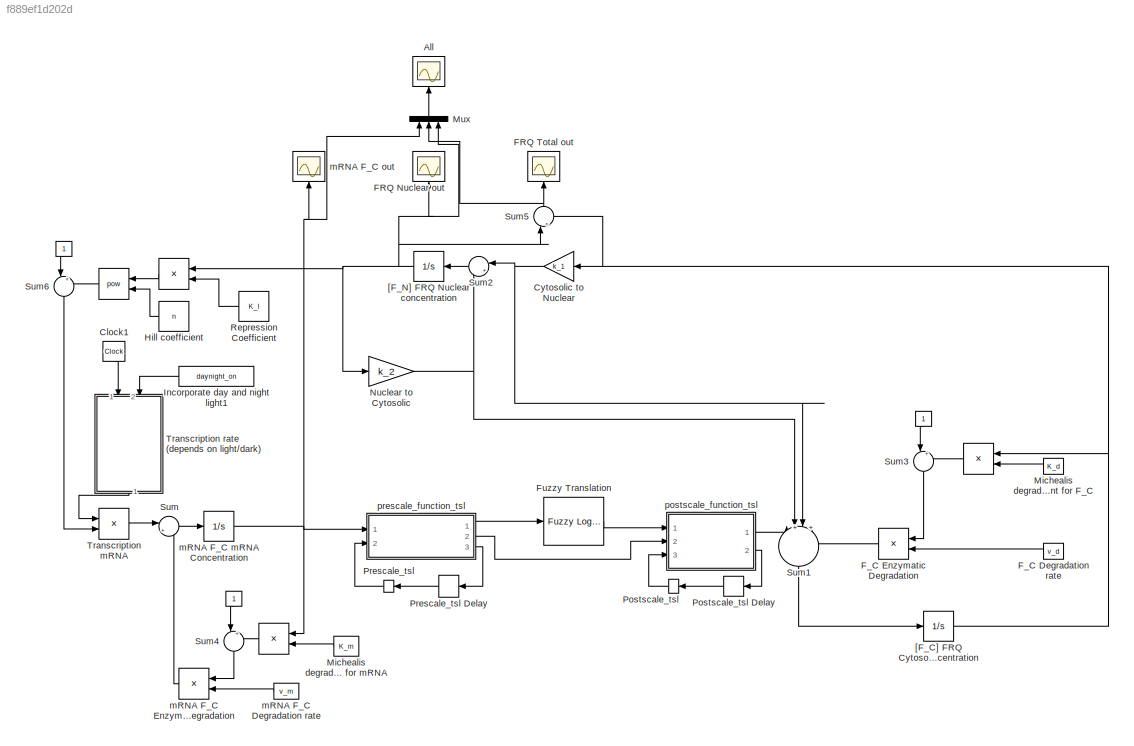
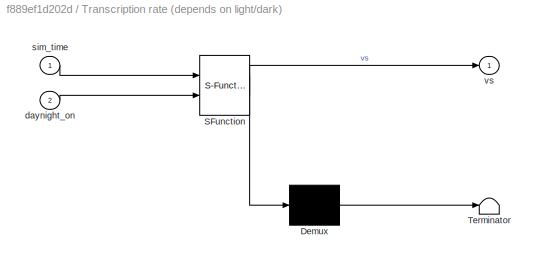
MODEL slx_f889ef1d202d
KIND model
CONFIG AbsTol = auto
CONFIG FixedStep = 0.01
CONFIG MaxStep = auto
CONFIG MinStep = auto
CONFIG RelTol = 1e-3
CONFIG SampleTimeConstraint = Unconstrained
CONFIG Solver = ode4
CONFIG SolverMode = Auto
CONFIG SolverName = ode4
CONFIG StartTime = 0.0
CONFIG StopTime = 72
BLOCK [Product]  
  InputSameDT = off
  Inputs = /*
  OutDataTypeStr = Inherit: Inherit via internal rule
  Ports = [2, 1]
  RndMeth = Floor
  SaturateOnIntegerOverflow = off
BLOCK [Constant]           
BLOCK [Scope] All
  Floating = off
  LimitDataPoints = off
  NumInputPorts = 1
  Ports = [1]
  SaveName = All
  SaveToWorkspace = on
  TimeRange = 71.999776
  YMax = 9
  YMin = 0
BLOCK [Clock] Clock1
BLOCK [Gain] Cytosolic to Nuclear
  Gain = k_1
  OutDataTypeStr = Inherit: Inherit via internal rule
  ParamDataTypeStr = Inherit: Inherit via internal rule
  SaturateOnIntegerOverflow = off
BLOCK [Scope] FRQ Nuclear out
  Floating = off
  LimitDataPoints = off
  NumInputPorts = 1
  Ports = [1]
  SaveName = F_N
  SaveToWorkspace = on
  TimeRange = 71.999776
  YMax = 4.5
  YMin = 0
BLOCK [Scope] FRQ Total out
  Floating = off
  LimitDataPoints = off
  NumInputPorts = 1
  Ports = [1]
  SaveName = F_FL_tsl
  SaveToWorkspace = on
  TimeRange = 71.999776
  YMax = 10
  YMin = 0.5
BLOCK [Constant] F_C Degradation rate
  Value = v_d
BLOCK [Product] F_C Enzymatic Degradation
  InputSameDT = off
  Inputs = /*
  OutDataTypeStr = Inherit: Inherit via internal rule
  Ports = [2, 1]
  RndMeth = Floor
  SaturateOnIntegerOverflow = off
BLOCK [Reference] Fuzzy Translation  REF=fuzblock/Fuzzy Logic   (lib defined in mdl_858b3b3e7478)
Controller
  Ports = [1, 1]
  SourceBlock = fuzblock/Fuzzy Logic \nController
  SourceType = FIS
  fis = tsl
BLOCK [Constant] Hill coefficient
  Value = n
BLOCK [Constant] Incorporate day and night light1
  Value = daynight_on
BLOCK [Constant] Michealis degradation constant for F_C
  Value = K_d
BLOCK [Constant] Michealis degradation constant for mRNA
  Value = K_m
BLOCK [Mux] Mux
  DisplayOption = bar
  Inputs = 3
  Ports = [3, 1]
BLOCK [Gain] Nuclear to Cytosolic
  Gain = k_2
  OutDataTypeStr = Inherit: Inherit via internal rule
  ParamDataTypeStr = Inherit: Inherit via internal rule
  SaturateOnIntegerOverflow = off
BLOCK [InitialCondition] Postscale_tsl
  Value = 2
BLOCK [Delay] Postscale_tsl Delay
  DelayLength = 1
  InitialCondition = 1
  InputPortMap = u0
  Ports = [1, 1]
BLOCK [InitialCondition] Prescale_tsl
  Value = 5
BLOCK [Delay] Prescale_tsl Delay
  DelayLength = 1
  InitialCondition = 1
  InputPortMap = u0
  Ports = [1, 1]
  UseCircularBuffer = on
BLOCK [Constant] Repression Coefficient
  Value = K_I
BLOCK [Sum] Sum
  IconShape = round
  InputSameDT = off
  Inputs = |+-
  OutDataTypeStr = Inherit: Inherit via internal rule
  Ports = [2, 1]
  SaturateOnIntegerOverflow = off
BLOCK [Sum] Sum1
  IconShape = round
  InputSameDT = off
  Inputs = |+|+|-|-
  OutDataTypeStr = Inherit: Inherit via internal rule
  Ports = [4, 1]
  SaturateOnIntegerOverflow = off
BLOCK [Sum] Sum2
  IconShape = round
  InputSameDT = off
  Inputs = |+-
  OutDataTypeStr = Inherit: Inherit via internal rule
  Ports = [2, 1]
  SaturateOnIntegerOverflow = off
BLOCK [Sum] Sum3
  IconShape = round
  InputSameDT = off
  Inputs = |++
  OutDataTypeStr = Inherit: Inherit via internal rule
  Ports = [2, 1]
  SaturateOnIntegerOverflow = off
BLOCK [Sum] Sum4
  IconShape = round
  InputSameDT = off
  Inputs = |++
  OutDataTypeStr = Inherit: Inherit via internal rule
  Ports = [2, 1]
  SaturateOnIntegerOverflow = off
BLOCK [Sum] Sum5
  IconShape = round
  InputSameDT = off
  Inputs = |++
  OutDataTypeStr = Inherit: Inherit via internal rule
  Ports = [2, 1]
  SaturateOnIntegerOverflow = off
BLOCK [Sum] Sum6
  IconShape = round
  InputSameDT = off
  Inputs = |++
  OutDataTypeStr = Inherit: Inherit via internal rule
  Ports = [2, 1]
  SaturateOnIntegerOverflow = off
BLOCK [Product] Transcription mRNA
  InputSameDT = off
  Inputs = */
  OutDataTypeStr = Inherit: Inherit via internal rule
  Ports = [2, 1]
  RndMeth = Floor
  SaturateOnIntegerOverflow = off
BLOCK [SubSystem] Transcription rate (depends on light//dark)  
  ErrorFcn = Stateflow.Translate.translate
  PermitHierarchicalResolution = ExplicitOnly
  Ports = [2, 1]
  RequestExecContextInheritance = off
  SFBlockType = MATLAB Function
  TreatAsAtomicUnit = on
BLOCK [Demux] Transcription rate (depends on light//dark)  / Demux 
  Outputs = 1
  Ports = [1, 1]
BLOCK [S-Function] Transcription rate (depends on light//dark)  / SFunction 
  EnableBusSupport = on
  FunctionName = sf_sfun
  PortCounts = [2 2]
  Ports = [2, 2]
  Tag = Stateflow S-Function FUZZY_tsl_neurospora_model_leloup 3
BLOCK [Terminator] Transcription rate (depends on light//dark)  / Terminator 
BLOCK [Inport] Transcription rate (depends on light//dark)  /daynight_on
  IconDisplay = Port number
  Port = 2
BLOCK [Inport] Transcription rate (depends on light//dark)  /sim_time
  IconDisplay = Port number
BLOCK [Outport] Transcription rate (depends on light//dark)  /vs
  IconDisplay = Port number
BLOCK [Integrator] [F_C] FRQ Cytosolic concentration 
  InitialCondition = 1
  Ports = [1, 1]
BLOCK [Integrator] [F_N] FRQ Nuclear concentration
  InitialCondition = 1
  Ports = [1, 1]
BLOCK [Constant] mRNA F_C Degradation rate
  Value = v_m
BLOCK [Product] mRNA F_C Enzymatic Degradation
  InputSameDT = off
  Inputs = /*
  OutDataTypeStr = Inherit: Inherit via internal rule
  Ports = [2, 1]
  RndMeth = Floor
  SaturateOnIntegerOverflow = off
BLOCK [Integrator] mRNA F_C mRNA Concentration
  InitialCondition = 1
  Ports = [1, 1]
BLOCK [Scope] mRNA F_C out
  Floating = off
  LimitDataPoints = off
  NumInputPorts = 1
  Ports = [1]
  SaveName = mRNA
  SaveToWorkspace = on
  TimeRange = 71.999776
  YMax = 6
  YMin = 0
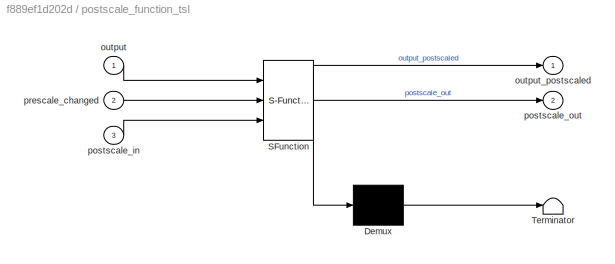
BLOCK [SubSystem] postscale_function_tsl
  ErrorFcn = Stateflow.Translate.translate
  PermitHierarchicalResolution = ExplicitOnly
  Ports = [3, 2]
  RequestExecContextInheritance = off
  SFBlockType = MATLAB Function
  TreatAsAtomicUnit = on
BLOCK [Demux] postscale_function_tsl/ Demux 
  Outputs = 1
  Ports = [1, 1]
BLOCK [S-Function] postscale_function_tsl/ SFunction 
  EnableBusSupport = on
  FunctionName = sf_sfun
  PortCounts = [3 3]
  Ports = [3, 3]
  Tag = Stateflow S-Function FUZZY_tsl_neurospora_model_leloup 6
BLOCK [Terminator] postscale_function_tsl/ Terminator 
BLOCK [Inport] postscale_function_tsl/output
  IconDisplay = Port number
BLOCK [Outport] postscale_function_tsl/output_postscaled
  IconDisplay = Port number
BLOCK [Inport] postscale_function_tsl/postscale_in
  IconDisplay = Port number
  Port = 3
BLOCK [Outport] postscale_function_tsl/postscale_out
  IconDisplay = Port number
  Port = 2
BLOCK [Inport] postscale_function_tsl/prescale_changed
  IconDisplay = Port number
  Port = 2
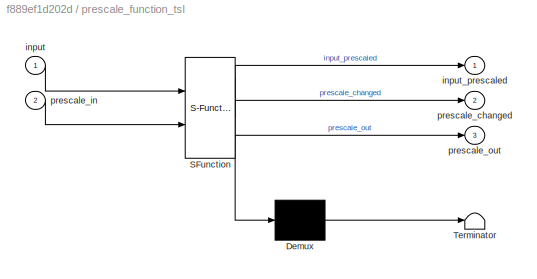
BLOCK [SubSystem] prescale_function_tsl
  ErrorFcn = Stateflow.Translate.translate
  PermitHierarchicalResolution = ExplicitOnly
  Ports = [2, 3]
  RequestExecContextInheritance = off
  SFBlockType = MATLAB Function
  TreatAsAtomicUnit = on
BLOCK [Demux] prescale_function_tsl/ Demux 
  Outputs = 1
  Ports = [1, 1]
BLOCK [S-Function] prescale_function_tsl/ SFunction 
  EnableBusSupport = on
  FunctionName = sf_sfun
  PortCounts = [2 4]
  Ports = [2, 4]
  Tag = Stateflow S-Function FUZZY_tsl_neurospora_model_leloup 5
BLOCK [Terminator] prescale_function_tsl/ Terminator 
BLOCK [Inport] prescale_function_tsl/input
  IconDisplay = Port number
BLOCK [Outport] prescale_function_tsl/input_prescaled
  IconDisplay = Port number
BLOCK [Outport] prescale_function_tsl/prescale_changed
  IconDisplay = Port number
  Port = 2
BLOCK [Inport] prescale_function_tsl/prescale_in
  IconDisplay = Port number
  Port = 2
BLOCK [Outport] prescale_function_tsl/prescale_out
  IconDisplay = Port number
  Port = 3
LINE           :1 -> Sum6:1
NET  :1 ->  :1, Sum3:1, Sum3:2, Sum4:1, Sum4:2, Sum6:2
LINE Clock1:1 -> Transcription rate (depends on light//dark)  :1
NET Cytosolic to Nuclear:1 -> Sum1:3, Sum2:1
LINE F_C Degradation rate:1 -> F_C Enzymatic Degradation:2
LINE F_C Enzymatic Degradation:1 -> Sum1:4
LINE Fuzzy Translation:1 -> postscale_function_tsl:1
LINE Hill coefficient:1 ->  :2
LINE Incorporate day and night light1:1 -> Transcription rate (depends on light//dark)  :2
LINE Michealis degradation constant for F_C:1 ->  :2
LINE Michealis degradation constant for mRNA:1 ->  :2
LINE Mux:1 -> All:1
NET Nuclear to Cytosolic:1 -> Sum1:2, Sum2:2
LINE Postscale_tsl Delay:1 -> Postscale_tsl:1
LINE Postscale_tsl:1 -> postscale_function_tsl:3
LINE Prescale_tsl Delay:1 -> Prescale_tsl:1
LINE Prescale_tsl:1 -> prescale_function_tsl:2
LINE Repression Coefficient:1 ->  :2
LINE Sum1:1 -> [F_C] FRQ Cytosolic concentration :1
LINE Sum2:1 -> [F_N] FRQ Nuclear concentration:1
LINE Sum3:1 -> F_C Enzymatic Degradation:1
LINE Sum4:1 -> mRNA F_C Enzymatic Degradation:1
NET Sum5:1 -> FRQ Total out:1, Mux:2
LINE Sum6:1 -> Transcription mRNA:2
LINE Sum:1 -> mRNA F_C mRNA Concentration:1
LINE Transcription mRNA:1 -> Sum:1
LINE Transcription rate (depends on light//dark)  :1 -> Transcription mRNA:1
NET [F_C] FRQ Cytosolic concentration :1 ->  :1, Cytosolic to Nuclear:1, Sum5:2
NET [F_N] FRQ Nuclear concentration:1 ->  :1, FRQ Nuclear out:1, Mux:3, Nuclear to Cytosolic:1, Sum5:1
LINE mRNA F_C Degradation rate:1 -> mRNA F_C Enzymatic Degradation:2
LINE mRNA F_C Enzymatic Degradation:1 -> Sum:2
NET mRNA F_C mRNA Concentration:1 ->  :1, Mux:1, mRNA F_C out:1, prescale_function_tsl:1
LINE postscale_function_tsl:1 -> Sum1:1
LINE postscale_function_tsl:2 -> Postscale_tsl Delay:1
LINE prescale_function_tsl:1 -> Fuzzy Translation:1
LINE prescale_function_tsl:2 -> postscale_function_tsl:2
LINE prescale_function_tsl:3 -> Prescale_tsl Delay:1
note: NET lines group one-source signal fan-out (src -> all destinations, sorted); 1:1 wires keep LINE
CHART Transcription rate
(depends on light//dark)   states=1 transitions=1
  STATE_LABEL 'eML_blk_kernel()'
  STATE_LABEL 'SCRIPT:\nfunction vs = day_night(sim_time,daynight_on)\n\nvs_day = 2;\nvs_night = 1.6;\n\nif daynight_on == 1\n    if ((sim_time > 0 && sim_time < 12) || (sim_time > 24 && sim_time < 36) || (sim_time > 48 && sim_time < 60)) % DAY\n        vs = vs_day;\n    else % NIGHT\n        vs = vs_night;\n    end\nelse % NO DIFFERENTIATION BETWEEN NIGHT AND DAY\n    vs = vs_night;\nend\n\n\n\n    '
CHART prescale_function_tsl states=1 transitions=1
  STATE_LABEL 'eML_blk_kernel()'
  STATE_LABEL 'SCRIPT:\nfunction [input_prescaled, prescale_changed, prescale_out] = prescale(input, prescale_in)\n\nprescale_out = prescale_in;\nmultiplier = 1.01;\nprescale_changed = 0;\n\nif (input >= 0.9*prescale_in)\n    prescale_out = prescale_in*multiplier;\n    prescale_changed = 1;\nend\n    \ninput_prescaled = input/prescale_out;\n\n'
CHART postscale_function_tsl states=1 transitions=1
  STATE_LABEL 'eML_blk_kernel()'
  STATE_LABEL 'SCRIPT:\nfunction [output_postscaled, postscale_out] = postscale(output, prescale_changed, postscale_in)\n\npostscale_out = postscale_in;\nmultiplier = 1.01;\n\nif (prescale_changed == 1)\n    postscale_out = postscale_out*multiplier;\nend\n\noutput_postscaled = output*postscale_out;\n\n'
